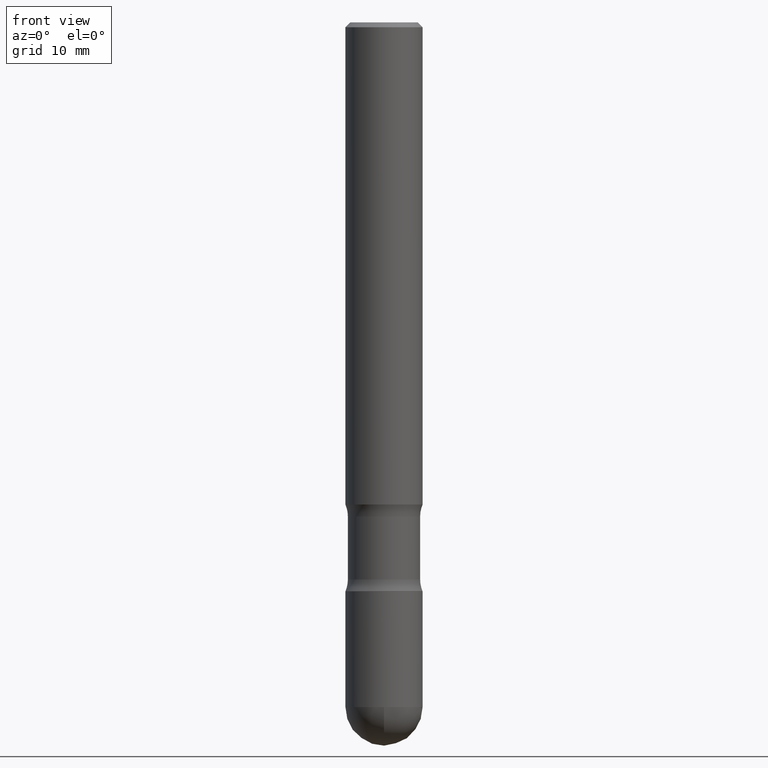
[diagram: clean part render]
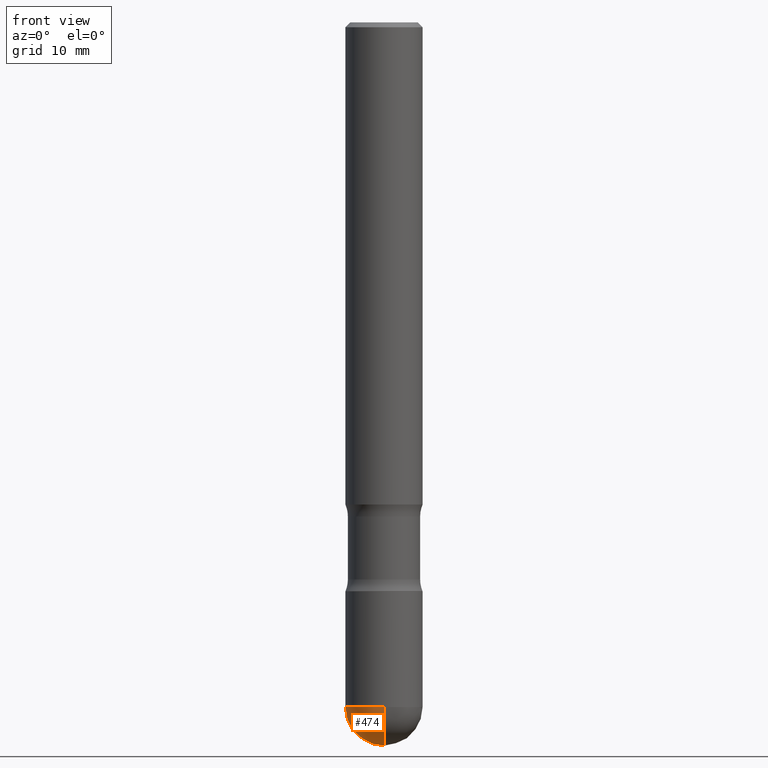
[diagram: same view with one face highlighted and labeled with its STEP entity id]
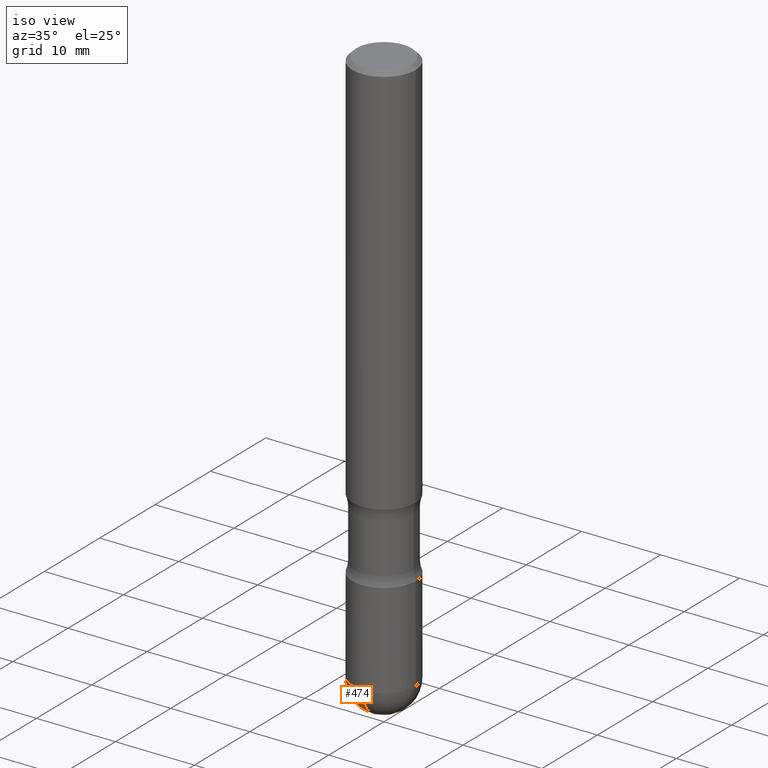
[diagram: same view with one face highlighted and labeled with its STEP entity id]
A machine part, front view. The second image highlights one B-rep face of the part: STEP entity #474.
A second angle (iso view) of the same face is appended — the face is thin or edge-on in the first view.
In plain terms, the highlighted spherical surface has radius 4.0005 mm.
Its self-contained STEP definition (entity closure, byte-faithful):
#17 = AXIS2_PLACEMENT_3D ( 'NONE', #526, #127, #490 ) ;
#20 = DIRECTION ( 'NONE',  ( 1.000000000000000000, -6.982962677686265922E-15, 4.883557194083112340E-29 ) ) ;
#33 = CARTESIAN_POINT ( 'NONE',  ( 6.835818953929311707E-29, -9.759737786468243605E-15, -2.795299999999999674 ) ) ;
#36 = CARTESIAN_POINT ( 'NONE',  ( 6.822350084874735636E-29, -9.779025973554814517E-15, -2.795299999999999674 ) ) ;
#59 = CARTESIAN_POINT ( 'NONE',  ( -0.1574999999999994738, -7.815945085411339316E-15, -2.795299999999999674 ) ) ;
#74 = ORIENTED_EDGE ( 'NONE', *, *, #469, .T. ) ;
#79 = DIRECTION ( 'NONE',  ( -1.000000000000000000, 7.105427357601001070E-15, -4.926315508542082329E-29 ) ) ;
#120 = CIRCLE ( 'NONE', #423, 0.1574999999999994738 ) ;
#127 = DIRECTION ( 'NONE',  ( -2.445468806185136597E-29, 3.491481338843145583E-15, 1.000000000000000000 ) ) ;
#148 = VERTEX_POINT ( 'NONE', #322 ) ;
#162 = DIRECTION ( 'NONE',  ( -7.105427357601000281E-15, -1.000000000000000000, 0.000000000000000000 ) ) ;
#176 = EDGE_CURVE ( 'NONE', #369, #517, #438, .T. ) ;
#192 = VERTEX_POINT ( 'NONE', #59 ) ;
#198 = AXIS2_PLACEMENT_3D ( 'NONE', #460, #20, #511 ) ;
#204 = DIRECTION ( 'NONE',  ( -2.445468806185136597E-29, 3.491481338843145583E-15, 1.000000000000000000 ) ) ;
#206 = DIRECTION ( 'NONE',  ( -1.000000000000000000, 6.982962677686265922E-15, -4.883557194083112340E-29 ) ) ;
#233 = AXIS2_PLACEMENT_3D ( 'NONE', #36, #206, #292 ) ;
#292 = DIRECTION ( 'NONE',  ( 6.982962677686265922E-15, 1.000000000000000000, -3.469013325287939094E-15 ) ) ;
#301 = FACE_OUTER_BOUND ( 'NONE', #494, .T. ) ;
#318 = CARTESIAN_POINT ( 'NONE',  ( 1.099816621735655717E-15, 0.1574999999999902867, -2.795300000000000118 ) ) ;
#322 = CARTESIAN_POINT ( 'NONE',  ( -1.119104808822089564E-15, -0.1575000000000098266, -2.795299999999998786 ) ) ;
#339 = CIRCLE ( 'NONE', #17, 0.1574999999999994738 ) ;
#341 = CARTESIAN_POINT ( 'NONE',  ( 7.214245856376183829E-29, -1.031929019087932635E-14, -2.952800000000000313 ) ) ;
#350 = DIRECTION ( 'NONE',  ( 1.000000000000000000, -6.982962677686260400E-15, 0.000000000000000000 ) ) ;
#369 = VERTEX_POINT ( 'NONE', #341 ) ;
#414 = ORIENTED_EDGE ( 'NONE', *, *, #449, .F. ) ;
#418 = ORIENTED_EDGE ( 'NONE', *, *, #176, .F. ) ;
#423 = AXIS2_PLACEMENT_3D ( 'NONE', #33, #204, #350 ) ;
#426 = CARTESIAN_POINT ( 'NONE',  ( 6.822350084874735636E-29, -9.779025973554814517E-15, -2.795299999999999674 ) ) ;
#431 = CIRCLE ( 'NONE', #515, 0.1575000000000006395 ) ;
#434 = SPHERICAL_SURFACE ( 'NONE', #233, 0.1575000000000006395 ) ;
#438 = CIRCLE ( 'NONE', #198, 0.1575000000000006395 ) ;
#449 = EDGE_CURVE ( 'NONE', #192, #148, #120, .T. ) ;
#460 = CARTESIAN_POINT ( 'NONE',  ( 6.822350084874735636E-29, -9.779025973554814517E-15, -2.795299999999999674 ) ) ;
#469 = EDGE_CURVE ( 'NONE', #369, #148, #431, .T. ) ;
#474 = ADVANCED_FACE ( 'NONE', ( #301 ), #434, .T. ) ;
#490 = DIRECTION ( 'NONE',  ( 1.000000000000000000, -6.982962677686260400E-15, 0.000000000000000000 ) ) ;
#492 = ORIENTED_EDGE ( 'NONE', *, *, #524, .F. ) ;
#494 = EDGE_LOOP ( 'NONE', ( #418, #74, #414, #492 ) ) ;
#511 = DIRECTION ( 'NONE',  ( 6.982962677686266711E-15, 1.000000000000000000, 0.000000000000000000 ) ) ;
#515 = AXIS2_PLACEMENT_3D ( 'NONE', #426, #79, #162 ) ;
#517 = VERTEX_POINT ( 'NONE', #318 ) ;
#524 = EDGE_CURVE ( 'NONE', #517, #192, #339, .T. ) ;
#526 = CARTESIAN_POINT ( 'NONE',  ( 6.835818953929311707E-29, -9.759737786468243605E-15, -2.795299999999999674 ) ) ;